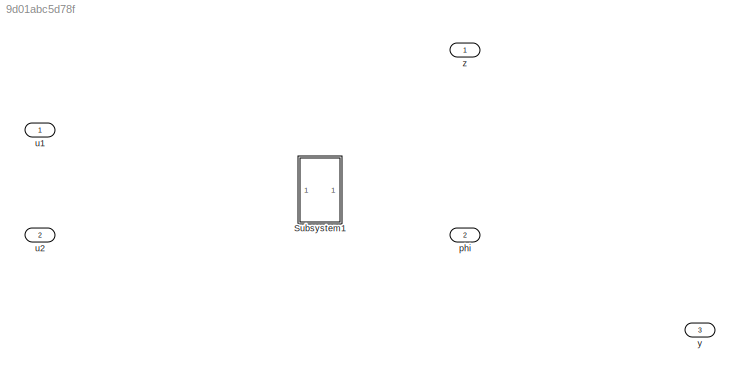
MODEL slx_9d01abc5d78f
KIND model
CONFIG AbsTol = auto
CONFIG EnableMultiTasking = off
CONFIG FixedStep = auto
CONFIG MaxStep = auto
CONFIG MinStep = auto
CONFIG RelTol = 1e-3
CONFIG SampleTimeConstraint = Unconstrained
CONFIG SolverName = VariableStepAuto
CONFIG StartTime = 0.0
CONFIG StopTime = 4
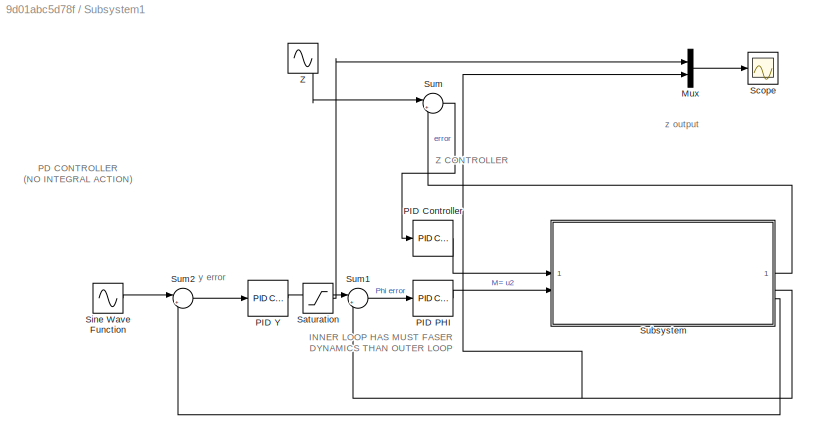
BLOCK [SubSystem] Subsystem1
BLOCK [Mux] Subsystem1/Mux
  DisplayOption = bar
  Inputs = 2
BLOCK [Reference] Subsystem1/PID Controller  REF=slpidlib/PID Controller
  LibrarySourceBlock = simulink/Continuous/PID Controller
  SourceBlock = slpidlib/PID Controller
  SourceType = PID 1dof
BLOCK [Reference] Subsystem1/PID PHI  REF=slpidlib/PID Controller
  LibrarySourceBlock = simulink/Continuous/PID Controller
  SourceBlock = slpidlib/PID Controller
  SourceType = PID 1dof
BLOCK [Reference] Subsystem1/PID Y  REF=slpidlib/PID Controller
  LibrarySourceBlock = simulink/Continuous/PID Controller
  SourceBlock = slpidlib/PID Controller
  SourceType = PID 1dof
BLOCK [Saturate] Subsystem1/Saturation
  LowerLimit = -0.8
  UpperLimit = 0.8
BLOCK [Scope] Subsystem1/Scope
  Floating = off
  NumInputPorts = 1
  ScopeSpecificationString = Simulink.scopes.TimeScopeBlockCfg('CurrentConfiguration', extmgr.ConfigurationSet(extmgr.Configuration('Core','General UI',true),extmgr.Configuration('Core','Source UI',true),extmgr.Configuration('Sources','WiredSimulink',true),extmgr.Configuration('Visuals','Time Domain',true,'SerializedDisplays',{struct('MinYLimReal','-1.00000','MaxYLimReal','1.00000','YLabelReal','','MinYLimMag','0.00000','MaxY...<+1424ch>
BLOCK [Sin] Subsystem1/Sine Wave Function
  Amplitude = 5
  SampleTime = 0
  TimeSource = Use external signal
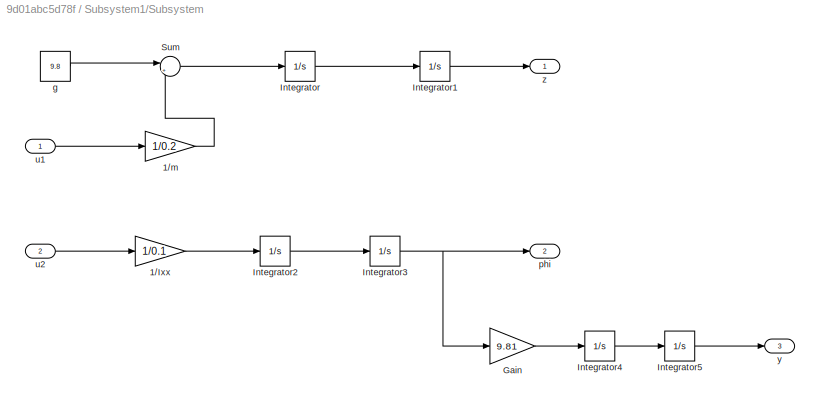
BLOCK [SubSystem] Subsystem1/Subsystem
BLOCK [Gain] Subsystem1/Subsystem/1//Ixx
  Gain = 1/0.1
BLOCK [Gain] Subsystem1/Subsystem/1//m
  Gain = 1/0.2
BLOCK [Gain] Subsystem1/Subsystem/Gain
  Gain = 9.81
BLOCK [Integrator] Subsystem1/Subsystem/Integrator
BLOCK [Integrator] Subsystem1/Subsystem/Integrator1
BLOCK [Integrator] Subsystem1/Subsystem/Integrator2
BLOCK [Integrator] Subsystem1/Subsystem/Integrator3
BLOCK [Integrator] Subsystem1/Subsystem/Integrator4
BLOCK [Integrator] Subsystem1/Subsystem/Integrator5
BLOCK [Sum] Subsystem1/Subsystem/Sum
  Inputs = |+-
BLOCK [Constant] Subsystem1/Subsystem/g
  Value = 9.8
BLOCK [Outport] Subsystem1/Subsystem/phi
  Port = 2
BLOCK [Inport] Subsystem1/Subsystem/u1
BLOCK [Inport] Subsystem1/Subsystem/u2
  Port = 2
BLOCK [Outport] Subsystem1/Subsystem/y
  Port = 3
BLOCK [Outport] Subsystem1/Subsystem/z
BLOCK [Sum] Subsystem1/Sum
  Inputs = |+-
BLOCK [Sum] Subsystem1/Sum1
  Inputs = |+-
BLOCK [Sum] Subsystem1/Sum2
  Inputs = |+-
BLOCK [Sin] Subsystem1/Z
  Amplitude = 5
  SampleTime = 0
  TimeSource = Use external signal
BLOCK [Outport] phi
  Port = 2
BLOCK [Inport] u1
BLOCK [Inport] u2
  Port = 2
BLOCK [Outport] y
  Port = 3
BLOCK [Outport] z
ANNOTATION Subsystem1: INNER LOOP HAS MUST FASER DYNAMICS THAN OUTER LOOP
ANNOTATION Subsystem1: PD CONTROLLER (NO INTEGRAL ACTION)
ANNOTATION Subsystem1: Z CONTROLLER
ANNOTATION Subsystem1: y error
ANNOTATION Subsystem1: z output
LINE Subsystem1/Mux:1 -> Subsystem1/Scope:1
LINE Subsystem1/PID Controller:1 -> Subsystem1/Subsystem:1
LINE Subsystem1/PID PHI:1 -> Subsystem1/Subsystem:2
LINE Subsystem1/PID Y:1 -> Subsystem1/Sum1:1
LINE Subsystem1/Saturation:1 -> Subsystem1/Mux:1
LINE Subsystem1/Sine Wave Function:1 -> Subsystem1/Sum2:1
LINE Subsystem1/Subsystem/1//Ixx:1 -> Subsystem1/Subsystem/Integrator2:1
LINE Subsystem1/Subsystem/1//m:1 -> Subsystem1/Subsystem/Sum:2
LINE Subsystem1/Subsystem/Gain:1 -> Subsystem1/Subsystem/Integrator4:1
LINE Subsystem1/Subsystem/Integrator1:1 -> Subsystem1/Subsystem/z:1
LINE Subsystem1/Subsystem/Integrator2:1 -> Subsystem1/Subsystem/Integrator3:1
NET Subsystem1/Subsystem/Integrator3:1 -> Subsystem1/Subsystem/Gain:1, Subsystem1/Subsystem/phi:1
LINE Subsystem1/Subsystem/Integrator4:1 -> Subsystem1/Subsystem/Integrator5:1
LINE Subsystem1/Subsystem/Integrator5:1 -> Subsystem1/Subsystem/y:1
LINE Subsystem1/Subsystem/Integrator:1 -> Subsystem1/Subsystem/Integrator1:1
LINE Subsystem1/Subsystem/Sum:1 -> Subsystem1/Subsystem/Integrator:1
LINE Subsystem1/Subsystem/g:1 -> Subsystem1/Subsystem/Sum:1
LINE Subsystem1/Subsystem/u1:1 -> Subsystem1/Subsystem/1//m:1
LINE Subsystem1/Subsystem/u2:1 -> Subsystem1/Subsystem/1//Ixx:1
LINE Subsystem1/Subsystem:1 -> Subsystem1/Sum:2
NET Subsystem1/Subsystem:2 -> Subsystem1/Mux:2, Subsystem1/Sum1:2
LINE Subsystem1/Subsystem:3 -> Subsystem1/Sum2:2
LINE Subsystem1/Sum1:1 -> Subsystem1/PID PHI:1
LINE Subsystem1/Sum2:1 -> Subsystem1/PID Y:1
LINE Subsystem1/Sum:1 -> Subsystem1/PID Controller:1
LINE Subsystem1/Z:1 -> Subsystem1/Sum:1
note: NET lines group one-source signal fan-out (src -> all destinations, sorted); 1:1 wires keep LINE
